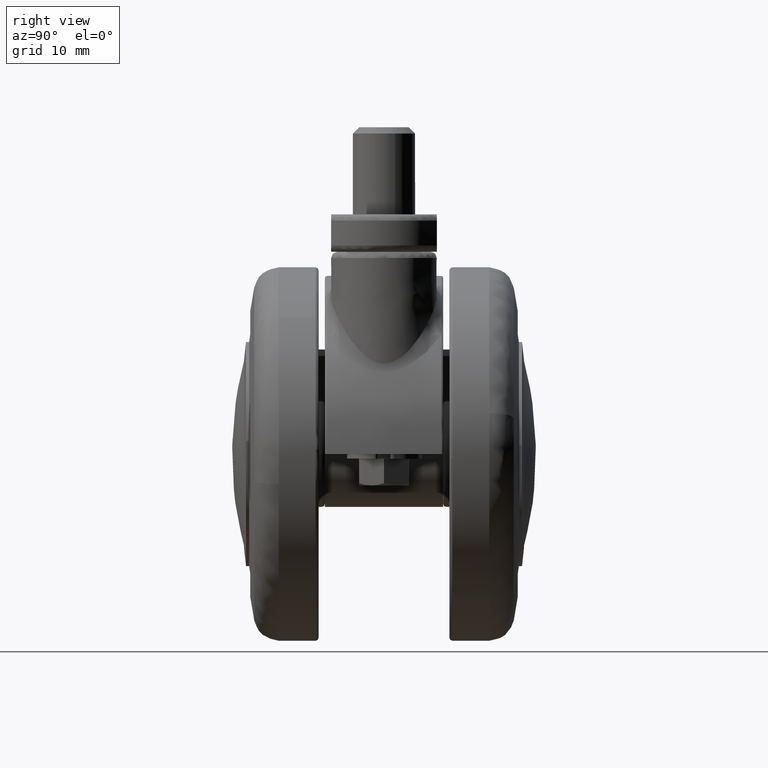
[diagram: clean part render]
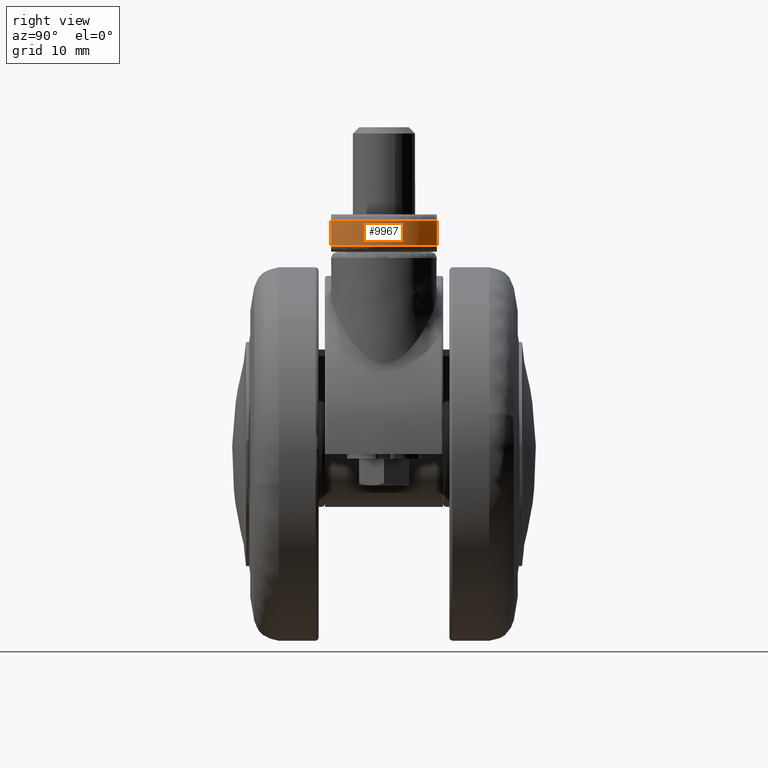
[diagram: same view with one face highlighted and labeled with its STEP entity id]
A machine part, right view. The second image highlights one B-rep face of the part: STEP entity #9967.
In plain terms, the highlighted face is a freeform B-spline surface patch.
Its self-contained STEP definition (entity closure, byte-faithful):
#9349=CARTESIAN_POINT('',(21.242640000000002,-8.500000000000000,37.500000000000000));
#9350=VERTEX_POINT('',#9349);
#9390=CARTESIAN_POINT('',(21.242640000000002,8.500000000000000,37.500000000000000));
#9391=VERTEX_POINT('',#9390);
#9392=CARTESIAN_POINT('',(21.242640000000002,8.500000000000000,37.500000000000000));
#9393=CARTESIAN_POINT('',(26.500000000000004,5.875872598211760,37.500000000000000));
#9394=CARTESIAN_POINT('',(26.500000000000000,0.0,37.500000000000000));
#9395=CARTESIAN_POINT('',(26.500000000000004,-5.875872598211759,37.500000000000000));
#9396=CARTESIAN_POINT('',(21.242640000000002,-8.500000000000000,37.500000000000000));
#9404=(BOUNDED_CURVE()B_SPLINE_CURVE(2,(#9392,#9393,#9394,#9395,#9396),.UNSPECIFIED.,.F.,.U.)B_SPLINE_CURVE_WITH_KNOTS((3,2,3),(0.0,0.500000000000000,1.0),.UNSPECIFIED.)CURVE()GEOMETRIC_REPRESENTATION_ITEM()RATIONAL_B_SPLINE_CURVE((1.0,0.850468605721611,1.0,0.850468605721611,1.0))REPRESENTATION_ITEM(''));
#9405=EDGE_CURVE('',#9391,#9350,#9404,.T.);
#9489=CARTESIAN_POINT('',(21.242640000000002,-8.500000000000000,33.500000000000000));
#9490=VERTEX_POINT('',#9489);
#9545=CARTESIAN_POINT('',(21.242640000000002,8.500000000000000,33.500000000000000));
#9546=VERTEX_POINT('',#9545);
#9584=CARTESIAN_POINT('',(21.242640000000002,-8.500000000000000,33.500000000000000));
#9585=CARTESIAN_POINT('',(26.500000000000004,-5.875872598211760,33.500000000000007));
#9586=CARTESIAN_POINT('',(26.500000000000000,0.0,33.500000000000000));
#9587=CARTESIAN_POINT('',(26.500000000000004,5.875872598211759,33.500000000000007));
#9588=CARTESIAN_POINT('',(21.242640000000002,8.500000000000000,33.500000000000000));
#9596=(BOUNDED_CURVE()B_SPLINE_CURVE(2,(#9584,#9585,#9586,#9587,#9588),.UNSPECIFIED.,.F.,.U.)B_SPLINE_CURVE_WITH_KNOTS((3,2,3),(0.0,0.500000000000000,1.0),.UNSPECIFIED.)CURVE()GEOMETRIC_REPRESENTATION_ITEM()RATIONAL_B_SPLINE_CURVE((1.0,0.850468605721611,1.0,0.850468605721611,1.0))REPRESENTATION_ITEM(''));
#9597=EDGE_CURVE('',#9490,#9546,#9596,.T.);
#9894=CARTESIAN_POINT('',(21.242640000000002,-8.500000000000000,37.500000000000000));
#9895=CARTESIAN_POINT('',(21.242640000000002,-8.500000000000000,33.500000000000000));
#9896=QUASI_UNIFORM_CURVE('',1,(#9894,#9895),.UNSPECIFIED.,.F.,.U.);
#9897=EDGE_CURVE('',#9350,#9490,#9896,.T.);
#9939=CARTESIAN_POINT('',(21.242640000000002,8.500000000000000,37.500000000000000));
#9940=CARTESIAN_POINT('',(21.242640000000002,8.500000000000000,33.500000000000000));
#9941=QUASI_UNIFORM_CURVE('',1,(#9939,#9940),.UNSPECIFIED.,.F.,.U.);
#9942=EDGE_CURVE('',#9391,#9546,#9941,.T.);
#9947=CARTESIAN_POINT('',(21.168303036174770,-8.536700170359515,37.600000000000009));
#9948=CARTESIAN_POINT('',(21.168303036174770,-8.536700170359515,33.397500000000001));
#9949=CARTESIAN_POINT('',(39.475315629825850,0.402254537498274,37.600000000000016));
#9950=CARTESIAN_POINT('',(39.475315629825850,0.402254537498274,33.397500000000001));
#9951=CARTESIAN_POINT('',(20.860158183004820,8.680390475213708,37.600000000000009));
#9952=CARTESIAN_POINT('',(20.860158183004820,8.680390475213708,33.397500000000001));
#9960=(BOUNDED_SURFACE()B_SPLINE_SURFACE(1,2,((#9947,#9949,#9951),(#9948,#9950,#9952)),.UNSPECIFIED.,.F.,.F.,.U.)B_SPLINE_SURFACE_WITH_KNOTS((2,2),(3,3),(0.0,4.202500000000010),(0.0,24.208669910684719),.UNSPECIFIED.)GEOMETRIC_REPRESENTATION_ITEM()RATIONAL_B_SPLINE_SURFACE(((1.0,0.422618261740700,1.0),(1.0,0.422618261740700,1.0)))REPRESENTATION_ITEM('')SURFACE());
#9961=ORIENTED_EDGE('',*,*,#9897,.T.);
#9962=ORIENTED_EDGE('',*,*,#9597,.T.);
#9963=ORIENTED_EDGE('',*,*,#9942,.F.);
#9964=ORIENTED_EDGE('',*,*,#9405,.T.);
#9965=EDGE_LOOP('',(#9961,#9962,#9963,#9964));
#9966=FACE_OUTER_BOUND('',#9965,.T.);
#9967=ADVANCED_FACE('',(#9966),#9960,.T.);